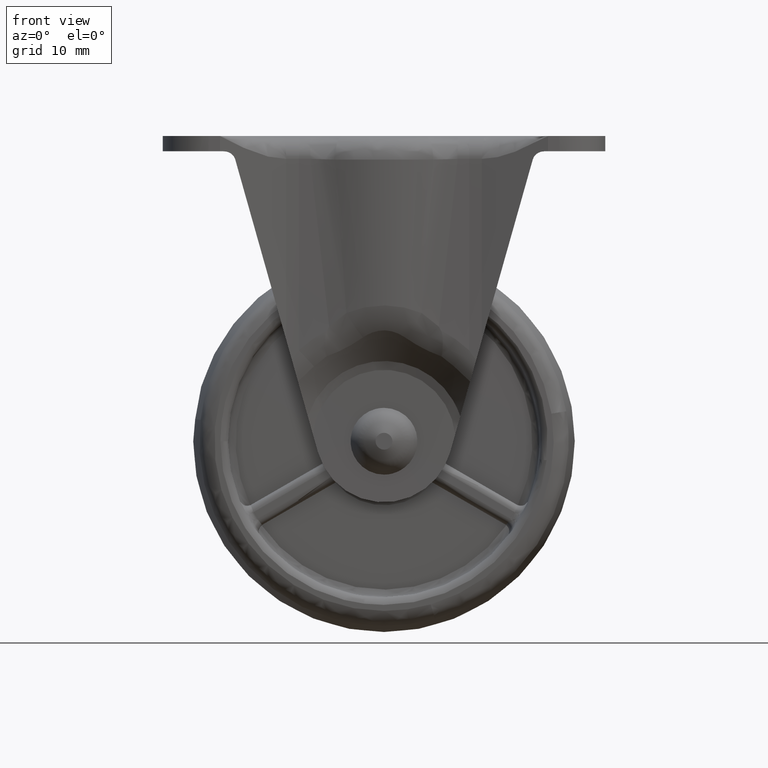
[diagram: clean part render]
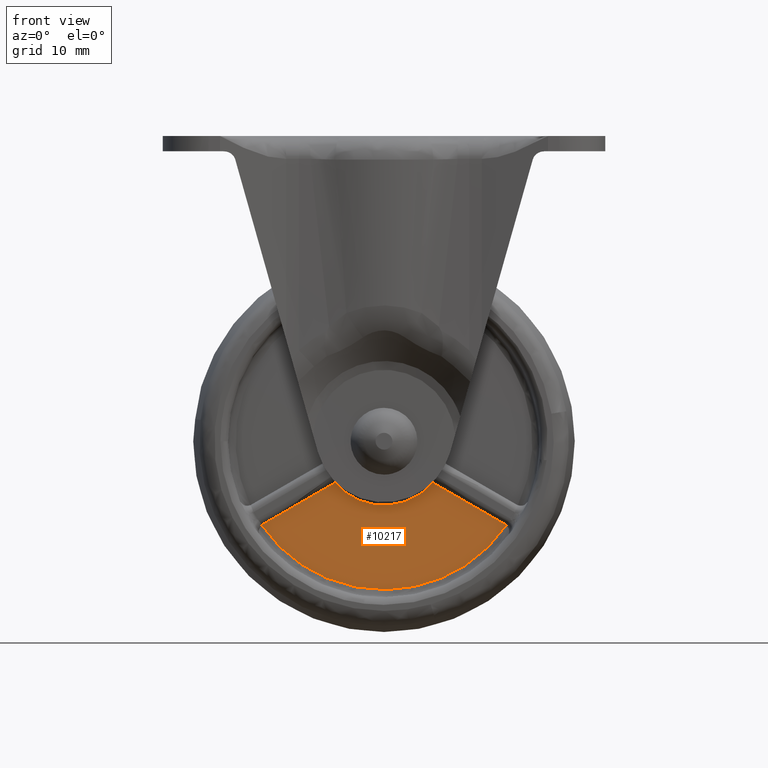
[diagram: same view with one face highlighted and labeled with its STEP entity id]
A machine part, front view. The second image highlights one B-rep face of the part: STEP entity #10217.
In plain terms, the highlighted face is a freeform B-spline surface patch.
Its self-contained STEP definition (entity closure, byte-faithful):
#3922=CARTESIAN_POINT('',(-15.954475161268100,-5.500000000000000,-10.943366042339401));
#3923=VERTEX_POINT('',#3922);
#3924=CARTESIAN_POINT('',(-16.041015283373699,-5.500000000000000,-10.999471240863020));
#3925=VERTEX_POINT('',#3924);
#3926=CARTESIAN_POINT('',(-15.954475161268100,-5.500000000000000,-10.943366042339390));
#3927=CARTESIAN_POINT('',(-15.999193762759548,-5.500000000000000,-10.969184323396576));
#3928=CARTESIAN_POINT('',(-16.041015283373699,-5.500000000000000,-10.999471240863020));
#3936=(BOUNDED_CURVE()B_SPLINE_CURVE(2,(#3926,#3927,#3928),.UNSPECIFIED.,.F.,.U.)CURVE()GEOMETRIC_REPRESENTATION_ITEM()QUASI_UNIFORM_CURVE()RATIONAL_B_SPLINE_CURVE((1.0,0.998669491619296,1.0))REPRESENTATION_ITEM(''));
#3937=EDGE_CURVE('',#3923,#3925,#3936,.T.);
#4484=CARTESIAN_POINT('',(16.041010157160549,-5.500000000000000,-10.999478716642599));
#4485=VERTEX_POINT('',#4484);
#4537=CARTESIAN_POINT('',(15.954470107604450,-5.500000000000000,-10.943373504578000));
#4538=VERTEX_POINT('',#4537);
#4544=CARTESIAN_POINT('',(16.041010157160539,-5.500000000000000,-10.999478716642621));
#4545=CARTESIAN_POINT('',(15.999188672417203,-5.500000000000000,-10.969191795441093));
#4546=CARTESIAN_POINT('',(15.954470107604450,-5.500000000000000,-10.943373504578011));
#4554=(BOUNDED_CURVE()B_SPLINE_CURVE(2,(#4544,#4545,#4546),.UNSPECIFIED.,.F.,.U.)CURVE()GEOMETRIC_REPRESENTATION_ITEM()QUASI_UNIFORM_CURVE()RATIONAL_B_SPLINE_CURVE((1.0,0.998669493000814,1.0))REPRESENTATION_ITEM(''));
#4555=EDGE_CURVE('',#4485,#4538,#4554,.T.);
#9756=CARTESIAN_POINT('',(-6.396626286217050,-5.500000000000000,-5.425142745366660));
#9757=VERTEX_POINT('',#9756);
#9768=CARTESIAN_POINT('',(-6.396626286217050,-5.500000000000000,-5.425142745366660));
#9769=CARTESIAN_POINT('',(-15.954475161268100,-5.500000000000000,-10.943366042339401));
#9770=QUASI_UNIFORM_CURVE('',1,(#9768,#9769),.UNSPECIFIED.,.F.,.U.);
#9771=EDGE_CURVE('',#9757,#3923,#9770,.T.);
#9795=CARTESIAN_POINT('',(6.396624146630480,-5.500000000000000,-5.425145268089260));
#9796=VERTEX_POINT('',#9795);
#9804=CARTESIAN_POINT('',(15.954470107604450,-5.500000000000000,-10.943373504578000));
#9805=CARTESIAN_POINT('',(6.396624146630480,-5.500000000000000,-5.425145268089260));
#9806=QUASI_UNIFORM_CURVE('',1,(#9804,#9805),.UNSPECIFIED.,.F.,.U.);
#9807=EDGE_CURVE('',#4538,#9796,#9806,.T.);
#10143=CARTESIAN_POINT('',(-16.041015283373699,-5.500000000000000,-10.999471240863020));
#10144=CARTESIAN_POINT('',(-10.246411191860984,-5.500000000000000,-19.449998612373484));
#10145=CARTESIAN_POINT('',(-0.000004532255005,-5.500000000000000,-19.450000999999482));
#10146=CARTESIAN_POINT('',(10.246402127350972,-5.500000000000000,-19.450003387625465));
#10147=CARTESIAN_POINT('',(16.041010157160539,-5.500000000000000,-10.999478716642599));
#10155=(BOUNDED_CURVE()B_SPLINE_CURVE(2,(#10143,#10144,#10145,#10146,#10147),.UNSPECIFIED.,.F.,.U.)B_SPLINE_CURVE_WITH_KNOTS((3,2,3),(0.0,0.500000000000000,1.0),.UNSPECIFIED.)CURVE()GEOMETRIC_REPRESENTATION_ITEM()RATIONAL_B_SPLINE_CURVE((1.0,0.884738853213935,1.0,0.884738853213935,1.0))REPRESENTATION_ITEM(''));
#10156=EDGE_CURVE('',#3925,#4485,#10155,.T.);
#10190=CARTESIAN_POINT('',(-17.643512994273390,-5.500000000000000,-4.724601152837293));
#10191=CARTESIAN_POINT('',(-17.643512994273390,-5.500000000000000,-20.150541965568820));
#10192=CARTESIAN_POINT('',(17.643508154895901,-5.500000000000000,-4.724601152837293));
#10193=CARTESIAN_POINT('',(17.643508154895901,-5.500000000000000,-20.150541965568820));
#10194=B_SPLINE_SURFACE_WITH_KNOTS('',1,1,((#10190,#10192),(#10191,#10193)),.UNSPECIFIED.,.F.,.F.,.U.,(2,2),(2,2),(0.0,15.425940812731531),(0.0,35.287021149169291),.UNSPECIFIED.);
#10195=ORIENTED_EDGE('',*,*,#10156,.T.);
#10196=ORIENTED_EDGE('',*,*,#4555,.T.);
#10197=ORIENTED_EDGE('',*,*,#9807,.T.);
#10198=CARTESIAN_POINT('',(-6.396626286217052,-5.500000000000000,-5.425142745366660));
#10199=CARTESIAN_POINT('',(-3.884234176819618,-5.500000000000000,-8.387430405351500));
#10200=CARTESIAN_POINT('',(-0.000001653931682,-5.500000000000000,-8.387431171289855));
#10201=CARTESIAN_POINT('',(3.884230868956255,-5.500000000000000,-8.387431937228209));
#10202=CARTESIAN_POINT('',(6.396624146630481,-5.500000000000000,-5.425145268089263));
#10210=(BOUNDED_CURVE()B_SPLINE_CURVE(2,(#10198,#10199,#10200,#10201,#10202),.UNSPECIFIED.,.F.,.U.)B_SPLINE_CURVE_WITH_KNOTS((3,2,3),(0.0,0.500000000000000,1.0),.UNSPECIFIED.)CURVE()GEOMETRIC_REPRESENTATION_ITEM()RATIONAL_B_SPLINE_CURVE((1.0,0.907418950703165,1.0,0.907418950703165,1.0))REPRESENTATION_ITEM(''));
#10211=EDGE_CURVE('',#9757,#9796,#10210,.T.);
#10212=ORIENTED_EDGE('',*,*,#10211,.F.);
#10213=ORIENTED_EDGE('',*,*,#9771,.T.);
#10214=ORIENTED_EDGE('',*,*,#3937,.T.);
#10215=EDGE_LOOP('',(#10195,#10196,#10197,#10212,#10213,#10214));
#10216=FACE_OUTER_BOUND('',#10215,.T.);
#10217=ADVANCED_FACE('',(#10216),#10194,.T.);